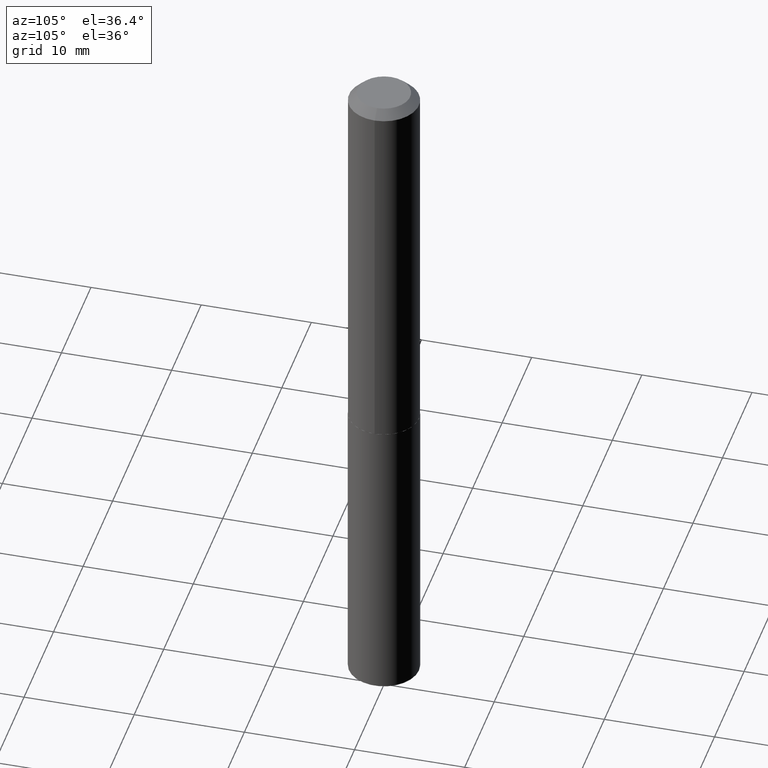
[diagram: clean part render]
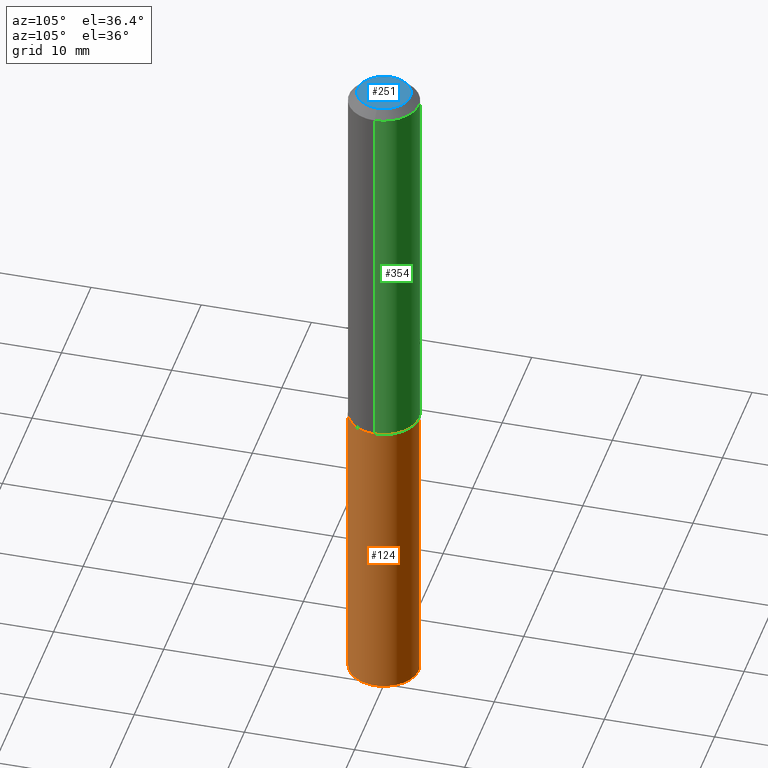
[diagram: same view with three faces highlighted in distinct colors, each labeled with its STEP entity id]
A machine part, auxiliary view with three faces highlighted in distinct colors.
Their STEP definitions:

[orange] entity #124 — the highlighted cylindrical surface (edge-blend (fillet) strip) has radius 3.175 mm, axis along (-0, 0, 1).
#16 = AXIS2_PLACEMENT_3D ( 'NONE', #323, #201, #88 ) ;
#18 = CARTESIAN_POINT ( 'NONE',  ( 8.881784197001587589E-16, 0.1249999999999951983, -1.375000000000000444 ) ) ;
#27 = LINE ( 'NONE', #197, #36 ) ;
#36 = VECTOR ( 'NONE', #291, 39.37007874015748143 ) ;
#44 = EDGE_CURVE ( 'NONE', #136, #95, #190, .T. ) ;
#57 = VERTEX_POINT ( 'NONE', #352 ) ;
#67 = CIRCLE ( 'NONE', #284, 0.1250000000000000000 ) ;
#68 = EDGE_CURVE ( 'NONE', #270, #57, #27, .T. ) ;
#83 = EDGE_CURVE ( 'NONE', #57, #95, #182, .T. ) ;
#88 = DIRECTION ( 'NONE',  ( -6.982962677686265922E-15, -1.000000000000000000, 4.370956789862821150E-15 ) ) ;
#91 = CYLINDRICAL_SURFACE ( 'NONE', #174, 0.1250000000000000000 ) ;
#95 = VERTEX_POINT ( 'NONE', #149 ) ;
#113 = EDGE_CURVE ( 'NONE', #270, #136, #67, .T. ) ;
#124 = ADVANCED_FACE ( 'NONE', ( #368 ), #91, .T. ) ;
#136 = VERTEX_POINT ( 'NONE', #283 ) ;
#149 = CARTESIAN_POINT ( 'NONE',  ( 8.881784197001853830E-16, 0.1249999999999951983, -1.375000000000000444 ) ) ;
#159 = DIRECTION ( 'NONE',  ( -6.982962677686265922E-15, -1.000000000000000000, 4.370956789862821150E-15 ) ) ;
#174 = AXIS2_PLACEMENT_3D ( 'NONE', #351, #385, #159 ) ;
#182 = CIRCLE ( 'NONE', #16, 0.1250000000000000000 ) ;
#190 = LINE ( 'NONE', #18, #219 ) ;
#195 = DIRECTION ( 'NONE',  ( -2.445437048854277742E-29, 3.491526817148451177E-15, 1.000000000000000000 ) ) ;
#197 = CARTESIAN_POINT ( 'NONE',  ( -8.728703347107496150E-16, -0.1250000000000048017, -1.374999999999999334 ) ) ;
#201 = DIRECTION ( 'NONE',  ( -2.445437048854277462E-29, 3.491526817148451177E-15, 1.000000000000000000 ) ) ;
#204 = ORIENTED_EDGE ( 'NONE', *, *, #83, .F. ) ;
#210 = DIRECTION ( 'NONE',  ( -6.982962677686265922E-15, -1.000000000000000000, 4.370956789862821150E-15 ) ) ;
#211 = ORIENTED_EDGE ( 'NONE', *, *, #113, .T. ) ;
#219 = VECTOR ( 'NONE', #195, 39.37007874015748143 ) ;
#270 = VERTEX_POINT ( 'NONE', #346 ) ;
#283 = CARTESIAN_POINT ( 'NONE',  ( 8.881784197001849886E-16, 0.1249999999999914235, -2.454503720716725734 ) ) ;
#284 = AXIS2_PLACEMENT_3D ( 'NONE', #337, #364, #210 ) ;
#289 = EDGE_LOOP ( 'NONE', ( #211, #383, #204, #298 ) ) ;
#291 = DIRECTION ( 'NONE',  ( -2.445437048854277742E-29, 3.491526817148451177E-15, 1.000000000000000000 ) ) ;
#298 = ORIENTED_EDGE ( 'NONE', *, *, #68, .F. ) ;
#323 = CARTESIAN_POINT ( 'NONE',  ( 3.362519608504562260E-29, -4.800786840909324930E-15, -1.375000000000000000 ) ) ;
#337 = CARTESIAN_POINT ( 'NONE',  ( 6.002378001521283483E-29, -8.569903031003303403E-15, -2.454503720716725290 ) ) ;
#346 = CARTESIAN_POINT ( 'NONE',  ( -8.728703347107231882E-16, -0.1250000000000085487, -2.454503720716724846 ) ) ;
#351 = CARTESIAN_POINT ( 'NONE',  ( 3.362519608504562260E-29, -4.800786840909324930E-15, -1.375000000000000000 ) ) ;
#352 = CARTESIAN_POINT ( 'NONE',  ( -8.728703347107496150E-16, -0.1250000000000048017, -1.374999999999999334 ) ) ;
#364 = DIRECTION ( 'NONE',  ( -2.445437048854277462E-29, 3.491526817148451177E-15, 1.000000000000000000 ) ) ;
#368 = FACE_OUTER_BOUND ( 'NONE', #289, .T. ) ;
#383 = ORIENTED_EDGE ( 'NONE', *, *, #44, .T. ) ;
#385 = DIRECTION ( 'NONE',  ( -2.445437048854277462E-29, 3.491526817148451177E-15, 1.000000000000000000 ) ) ;

[blue] entity #251 — the highlighted planar face has unit normal (0, -0, -1).
#5 = CARTESIAN_POINT ( 'NONE',  ( -2.335971725809276970E-47, 3.335148527799642567E-33, 9.552245033349363524E-19 ) ) ;
#9 = DIRECTION ( 'NONE',  ( -1.000000000000000000, 6.982962677686265922E-15, -4.876176775795935793E-29 ) ) ;
#34 = VERTEX_POINT ( 'NONE', #35 ) ;
#35 = CARTESIAN_POINT ( 'NONE',  ( -0.09374999999999998612, 7.092071469525108711E-16, 9.552245033301675573E-19 ) ) ;
#40 = CARTESIAN_POINT ( 'NONE',  ( -1.167985862904638485E-47, 1.667574263899821283E-33, 4.776122516674681762E-19 ) ) ;
#63 = DIRECTION ( 'NONE',  ( 1.000000000000000000, -6.982962677686266711E-15, 4.876115938594587387E-29 ) ) ;
#82 = ORIENTED_EDGE ( 'NONE', *, *, #192, .T. ) ;
#152 = DIRECTION ( 'NONE',  ( 1.000000000000000000, -6.982962677686266711E-15, 4.876115938594587387E-29 ) ) ;
#153 = AXIS2_PLACEMENT_3D ( 'NONE', #40, #280, #9 ) ;
#155 = AXIS2_PLACEMENT_3D ( 'NONE', #313, #335, #152 ) ;
#162 = PLANE ( 'NONE',  #153 ) ;
#164 = FACE_OUTER_BOUND ( 'NONE', #231, .T. ) ;
#192 = EDGE_CURVE ( 'NONE', #353, #34, #319, .T. ) ;
#205 = AXIS2_PLACEMENT_3D ( 'NONE', #5, #209, #63 ) ;
#209 = DIRECTION ( 'NONE',  ( -2.445468806185136597E-29, 3.491481338843145583E-15, 1.000000000000000000 ) ) ;
#216 = EDGE_CURVE ( 'NONE', #34, #353, #379, .T. ) ;
#218 = CARTESIAN_POINT ( 'NONE',  ( 0.09374999999999998612, -8.049213644256857164E-16, 9.552245033400394890E-19 ) ) ;
#231 = EDGE_LOOP ( 'NONE', ( #269, #82 ) ) ;
#251 = ADVANCED_FACE ( 'NONE', ( #164 ), #162, .F. ) ;
#269 = ORIENTED_EDGE ( 'NONE', *, *, #216, .T. ) ;
#280 = DIRECTION ( 'NONE',  ( 2.438088387897960049E-29, -3.491481338843145188E-15, -1.000000000000000000 ) ) ;
#313 = CARTESIAN_POINT ( 'NONE',  ( -2.335971725809276970E-47, 3.335148527799642567E-33, 9.552245033349363524E-19 ) ) ;
#319 = CIRCLE ( 'NONE', #155, 0.09374999999999998612 ) ;
#335 = DIRECTION ( 'NONE',  ( -2.445468806185136597E-29, 3.491481338843145583E-15, 1.000000000000000000 ) ) ;
#353 = VERTEX_POINT ( 'NONE', #218 ) ;
#379 = CIRCLE ( 'NONE', #205, 0.09374999999999998612 ) ;

[green] entity #354 — the highlighted cylindrical surface (edge-blend (fillet) strip) has radius 3.175 mm, axis along (-0, 0, 1).
#6 = CARTESIAN_POINT ( 'NONE',  ( 0.1250000000000000000, -9.819791265496324395E-16, -0.03125000000000021511 ) ) ;
#11 = DIRECTION ( 'NONE',  ( -2.445468806185136597E-29, 3.491481338843145583E-15, 1.000000000000000000 ) ) ;
#15 = DIRECTION ( 'NONE',  ( 1.000000000000000000, -6.982962677686269077E-15, 0.000000000000000000 ) ) ;
#19 = AXIS2_PLACEMENT_3D ( 'NONE', #101, #11, #99 ) ;
#21 = ORIENTED_EDGE ( 'NONE', *, *, #246, .F. ) ;
#22 = CARTESIAN_POINT ( 'NONE',  ( -0.1250000000000000833, 8.881784197001258240E-16, -6.148668862818636431E-30 ) ) ;
#48 = LINE ( 'NONE', #75, #338 ) ;
#53 = AXIS2_PLACEMENT_3D ( 'NONE', #163, #281, #15 ) ;
#75 = CARTESIAN_POINT ( 'NONE',  ( 0.1250000000000000833, -8.728703347107839305E-16, 6.095220969744923945E-30 ) ) ;
#90 = VERTEX_POINT ( 'NONE', #360 ) ;
#99 = DIRECTION ( 'NONE',  ( 1.000000000000000000, -6.982962677686266711E-15, 0.000000000000000000 ) ) ;
#101 = CARTESIAN_POINT ( 'NONE',  ( 7.642090019328604414E-31, -1.091087918388490513E-16, -0.03125000000000021511 ) ) ;
#105 = ORIENTED_EDGE ( 'NONE', *, *, #370, .T. ) ;
#107 = AXIS2_PLACEMENT_3D ( 'NONE', #273, #121, #258 ) ;
#121 = DIRECTION ( 'NONE',  ( -2.445468806185136597E-29, 3.491481338843145583E-15, 1.000000000000000000 ) ) ;
#127 = CARTESIAN_POINT ( 'NONE',  ( -0.1250000000000001665, -3.910862680539777405E-15, -1.374500000000000055 ) ) ;
#143 = EDGE_LOOP ( 'NONE', ( #105, #294, #21, #243 ) ) ;
#154 = FACE_OUTER_BOUND ( 'NONE', #143, .T. ) ;
#163 = CARTESIAN_POINT ( 'NONE',  ( 3.361296874101470580E-29, -4.799041100239904215E-15, -1.374500000000000055 ) ) ;
#173 = VERTEX_POINT ( 'NONE', #375 ) ;
#177 = EDGE_CURVE ( 'NONE', #173, #388, #48, .T. ) ;
#243 = ORIENTED_EDGE ( 'NONE', *, *, #177, .F. ) ;
#246 = EDGE_CURVE ( 'NONE', #388, #90, #306, .T. ) ;
#248 = LINE ( 'NONE', #22, #377 ) ;
#258 = DIRECTION ( 'NONE',  ( 1.000000000000000000, -6.982962677686266711E-15, 4.876176775795935793E-29 ) ) ;
#263 = EDGE_CURVE ( 'NONE', #365, #90, #248, .T. ) ;
#273 = CARTESIAN_POINT ( 'NONE',  ( 0.000000000000000000, 0.000000000000000000, 0.000000000000000000 ) ) ;
#276 = DIRECTION ( 'NONE',  ( -2.445468806185136877E-29, 3.491481338843145188E-15, 1.000000000000000000 ) ) ;
#281 = DIRECTION ( 'NONE',  ( -2.445468806185136597E-29, 3.491481338843145583E-15, 1.000000000000000000 ) ) ;
#294 = ORIENTED_EDGE ( 'NONE', *, *, #263, .T. ) ;
#301 = CYLINDRICAL_SURFACE ( 'NONE', #107, 0.1250000000000000833 ) ;
#306 = CIRCLE ( 'NONE', #19, 0.1250000000000000000 ) ;
#320 = DIRECTION ( 'NONE',  ( -2.445468806185136877E-29, 3.491481338843145188E-15, 1.000000000000000000 ) ) ;
#338 = VECTOR ( 'NONE', #320, 39.37007874015748143 ) ;
#339 = CIRCLE ( 'NONE', #53, 0.1250000000000001665 ) ;
#354 = ADVANCED_FACE ( 'NONE', ( #154 ), #301, .T. ) ;
#360 = CARTESIAN_POINT ( 'NONE',  ( -0.1250000000000000000, -1.565896526339250439E-15, -0.03125000000000021511 ) ) ;
#365 = VERTEX_POINT ( 'NONE', #127 ) ;
#370 = EDGE_CURVE ( 'NONE', #173, #365, #339, .T. ) ;
#375 = CARTESIAN_POINT ( 'NONE',  ( 0.1250000000000001665, -5.671911434950688343E-15, -1.374500000000000055 ) ) ;
#377 = VECTOR ( 'NONE', #276, 39.37007874015748143 ) ;
#388 = VERTEX_POINT ( 'NONE', #6 ) ;